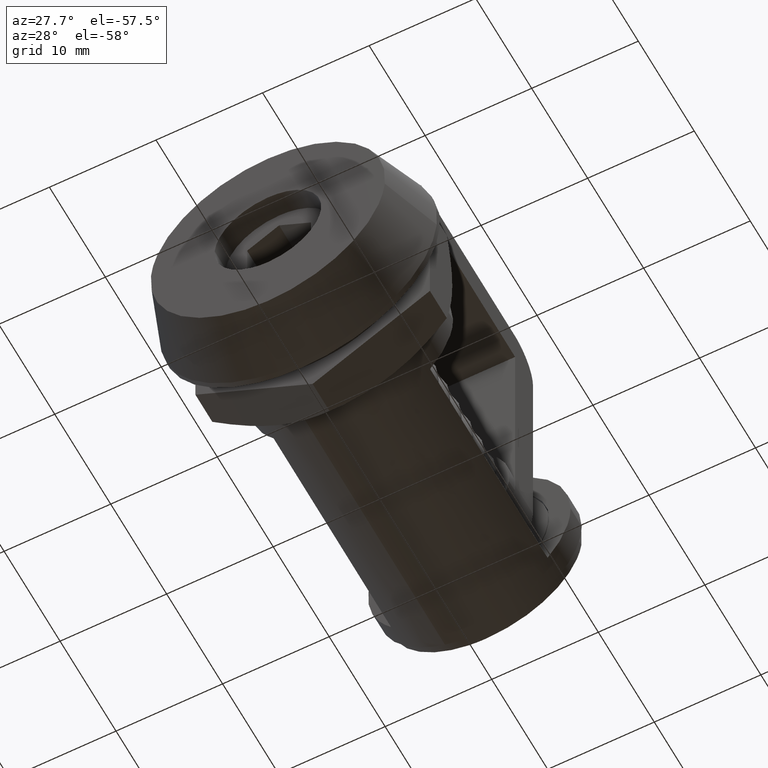
[diagram: clean part render]
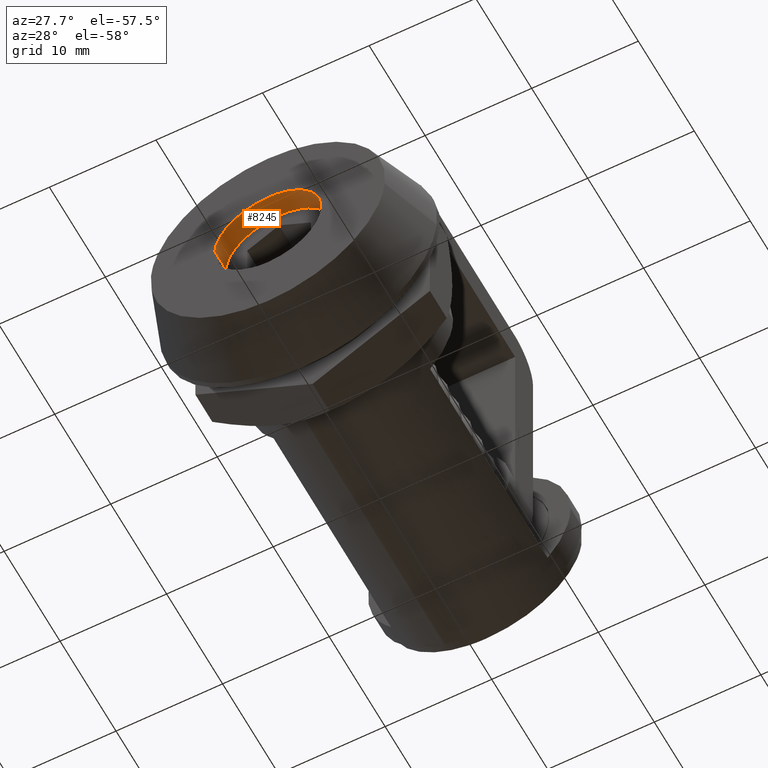
[diagram: same view with one face highlighted and labeled with its STEP entity id]
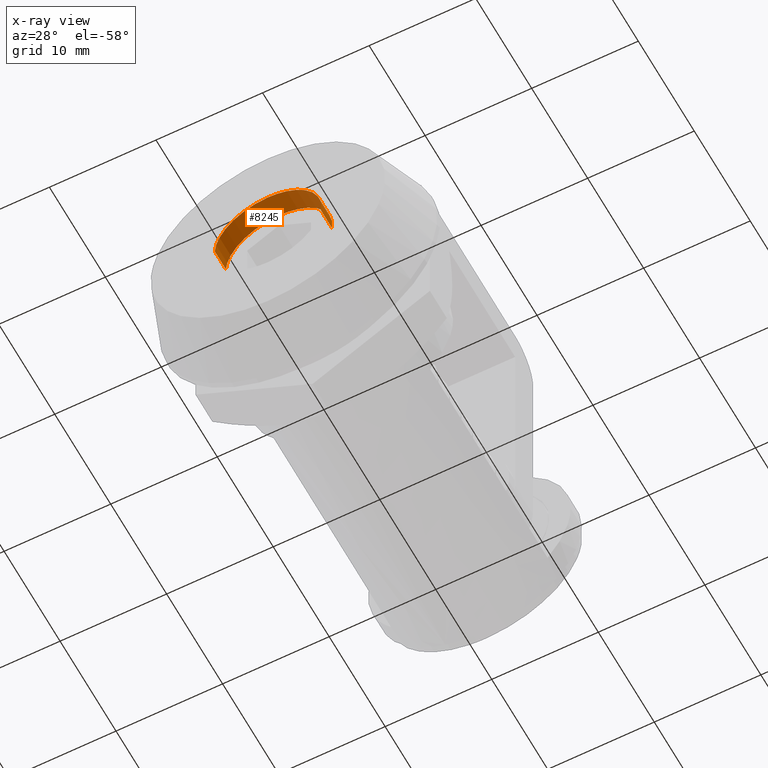
[diagram: x-ray of the same camera — body ghosted, the highlighted face saturated]
A machine part, auxiliary view. The second image highlights one B-rep face of the part: STEP entity #8245.
The next image is the same camera in x-ray: the body ghosted, the highlighted face saturated — about 0% of this face is hidden behind the body in this view.
In plain terms, the highlighted face is a freeform B-spline surface patch.
Its self-contained STEP definition (entity closure, byte-faithful):
#8143=CARTESIAN_POINT('',(4.965047631818332,2.050000000000000,-0.590171173283793));
#8144=CARTESIAN_POINT('',(4.981938077243028,2.050000000000000,-0.448073643189889));
#8145=CARTESIAN_POINT('',(4.990673992109334,2.050000000000000,-0.305242697674285));
#8146=CARTESIAN_POINT('',(5.295916689783620,2.050000000000001,4.685431294435048));
#8147=CARTESIAN_POINT('',(0.305242697674285,2.050000000000000,4.990673992109334));
#8148=CARTESIAN_POINT('',(-4.685431294435048,2.050000000000001,5.295916689783618));
#8149=CARTESIAN_POINT('',(-4.990673992109334,2.050000000000000,0.305242697674285));
#8150=CARTESIAN_POINT('',(4.965047631818332,-0.051250000000000,-0.590171173283793));
#8151=CARTESIAN_POINT('',(4.981938077243028,-0.051250000000000,-0.448073643189889));
#8152=CARTESIAN_POINT('',(4.990673992109334,-0.051250000000000,-0.305242697674285));
#8153=CARTESIAN_POINT('',(5.295916689783620,-0.051250000000000,4.685431294435048));
#8154=CARTESIAN_POINT('',(0.305242697674285,-0.051250000000000,4.990673992109334));
#8155=CARTESIAN_POINT('',(-4.685431294435048,-0.051250000000000,5.295916689783618));
#8156=CARTESIAN_POINT('',(-4.990673992109334,-0.051250000000000,0.305242697674285));
#8164=(BOUNDED_SURFACE()B_SPLINE_SURFACE(2,1,((#8143,#8150),(#8144,#8151),(#8145,#8152),(#8146,#8153),(#8147,#8154),(#8148,#8155),(#8149,#8156)),.UNSPECIFIED.,.F.,.F.,.U.)B_SPLINE_SURFACE_WITH_KNOTS((3,2,2,3),(2,2),(0.0,0.331370849898476,8.615642097360375,16.899913344822270),(0.0,2.101250000000000),.UNSPECIFIED.)GEOMETRIC_REPRESENTATION_ITEM()RATIONAL_B_SPLINE_SURFACE(((0.977505800795127,0.977505800795127),(0.988284271247462,0.988284271247462),(1.0,1.0),(0.707106781186548,0.707106781186548),(1.0,1.0),(0.707106781186548,0.707106781186548),(1.0,1.0)))REPRESENTATION_ITEM('')SURFACE());
#8165=CARTESIAN_POINT('',(4.965047631814872,2.0,-0.590171173312899));
#8166=VERTEX_POINT('',#8165);
#8167=CARTESIAN_POINT('',(0.0,2.0,5.0));
#8168=VERTEX_POINT('',#8167);
#8169=CARTESIAN_POINT('',(4.965047631814872,2.0,-0.590171173312899));
#8170=CARTESIAN_POINT('',(5.000000000000001,2.000000000000000,-0.296120598288965));
#8171=CARTESIAN_POINT('',(5.0,2.0,-2.821493E-016));
#8172=CARTESIAN_POINT('',(5.000000000000001,2.000000000000000,5.000000000000001));
#8173=CARTESIAN_POINT('',(0.0,2.0,5.0));
#8181=(BOUNDED_CURVE()B_SPLINE_CURVE(2,(#8169,#8170,#8171,#8172,#8173),.UNSPECIFIED.,.F.,.U.)B_SPLINE_CURVE_WITH_KNOTS((3,2,3),(0.229562473513663,0.250000000000000,0.500000000000000),.UNSPECIFIED.)CURVE()GEOMETRIC_REPRESENTATION_ITEM()RATIONAL_B_SPLINE_CURVE((0.956026754184002,0.976055948331326,1.0,0.707106781186548,1.0))REPRESENTATION_ITEM(''));
#8182=EDGE_CURVE('',#8166,#8168,#8181,.T.);
#8183=ORIENTED_EDGE('',*,*,#8182,.F.);
#8184=CARTESIAN_POINT('',(4.965047631814872,1.064786E-017,-0.590171173312899));
#8185=VERTEX_POINT('',#8184);
#8186=CARTESIAN_POINT('',(4.965047631814872,2.0,-0.590171173312899));
#8187=CARTESIAN_POINT('',(4.965047631814872,1.064786E-017,-0.590171173312899));
#8188=QUASI_UNIFORM_CURVE('',1,(#8186,#8187),.UNSPECIFIED.,.F.,.U.);
#8189=EDGE_CURVE('',#8166,#8185,#8188,.T.);
#8190=ORIENTED_EDGE('',*,*,#8189,.T.);
#8191=CARTESIAN_POINT('',(0.0,0.0,5.0));
#8192=VERTEX_POINT('',#8191);
#8193=CARTESIAN_POINT('',(4.965047631814872,1.064786E-017,-0.590171173312899));
#8194=CARTESIAN_POINT('',(5.000000000000001,0.0,-0.296120598288965));
#8195=CARTESIAN_POINT('',(5.0,0.0,-2.821493E-016));
#8196=CARTESIAN_POINT('',(5.000000000000001,0.0,5.000000000000001));
#8197=CARTESIAN_POINT('',(0.0,0.0,5.0));
#8205=(BOUNDED_CURVE()B_SPLINE_CURVE(2,(#8193,#8194,#8195,#8196,#8197),.UNSPECIFIED.,.F.,.U.)B_SPLINE_CURVE_WITH_KNOTS((3,2,3),(0.229562473513663,0.250000000000000,0.500000000000000),.UNSPECIFIED.)CURVE()GEOMETRIC_REPRESENTATION_ITEM()RATIONAL_B_SPLINE_CURVE((0.956026754184002,0.976055948331326,1.0,0.707106781186548,1.0))REPRESENTATION_ITEM(''));
#8206=EDGE_CURVE('',#8185,#8192,#8205,.T.);
#8207=ORIENTED_EDGE('',*,*,#8206,.T.);
#8208=CARTESIAN_POINT('',(-4.990674043895892,1.283695E-016,0.305241850969208));
#8209=VERTEX_POINT('',#8208);
#8210=CARTESIAN_POINT('',(0.0,0.0,5.0));
#8211=CARTESIAN_POINT('',(-4.703531933489114,0.0,4.999999999999999));
#8212=CARTESIAN_POINT('',(-4.990674043895892,1.283695E-016,0.305241850969208));
#8220=(BOUNDED_CURVE()B_SPLINE_CURVE(2,(#8210,#8211,#8212),.UNSPECIFIED.,.F.,.U.)B_SPLINE_CURVE_WITH_KNOTS((3,3),(0.500000000000000,0.739333020789672),.UNSPECIFIED.)CURVE()GEOMETRIC_REPRESENTATION_ITEM()RATIONAL_B_SPLINE_CURVE((1.0,0.719603924690265,0.976072167152107))REPRESENTATION_ITEM(''));
#8221=EDGE_CURVE('',#8192,#8209,#8220,.T.);
#8222=ORIENTED_EDGE('',*,*,#8221,.T.);
#8223=CARTESIAN_POINT('',(-4.990674044526246,1.999999999999995,0.305241840662935));
#8224=VERTEX_POINT('',#8223);
#8225=CARTESIAN_POINT('',(-4.990674044526246,1.999999999999995,0.305241840662935));
#8226=CARTESIAN_POINT('',(-4.990674043895892,1.283695E-016,0.305241850969208));
#8227=QUASI_UNIFORM_CURVE('',1,(#8225,#8226),.UNSPECIFIED.,.F.,.U.);
#8228=EDGE_CURVE('',#8224,#8209,#8227,.T.);
#8229=ORIENTED_EDGE('',*,*,#8228,.F.);
#8230=CARTESIAN_POINT('',(0.0,2.0,5.0));
#8231=CARTESIAN_POINT('',(-4.703531952951984,2.000000000000000,5.000000000000001));
#8232=CARTESIAN_POINT('',(-4.990674044526246,1.999999999999995,0.305241840662935));
#8240=(BOUNDED_CURVE()B_SPLINE_CURVE(2,(#8230,#8231,#8232),.UNSPECIFIED.,.F.,.U.)B_SPLINE_CURVE_WITH_KNOTS((3,3),(0.500000000000000,0.739333021502326),.UNSPECIFIED.)CURVE()GEOMETRIC_REPRESENTATION_ITEM()RATIONAL_B_SPLINE_CURVE((1.0,0.719603923855338,0.976072168679462))REPRESENTATION_ITEM(''));
#8241=EDGE_CURVE('',#8168,#8224,#8240,.T.);
#8242=ORIENTED_EDGE('',*,*,#8241,.F.);
#8243=EDGE_LOOP('',(#8183,#8190,#8207,#8222,#8229,#8242));
#8244=FACE_OUTER_BOUND('',#8243,.T.);
#8245=ADVANCED_FACE('',(#8244),#8164,.F.);